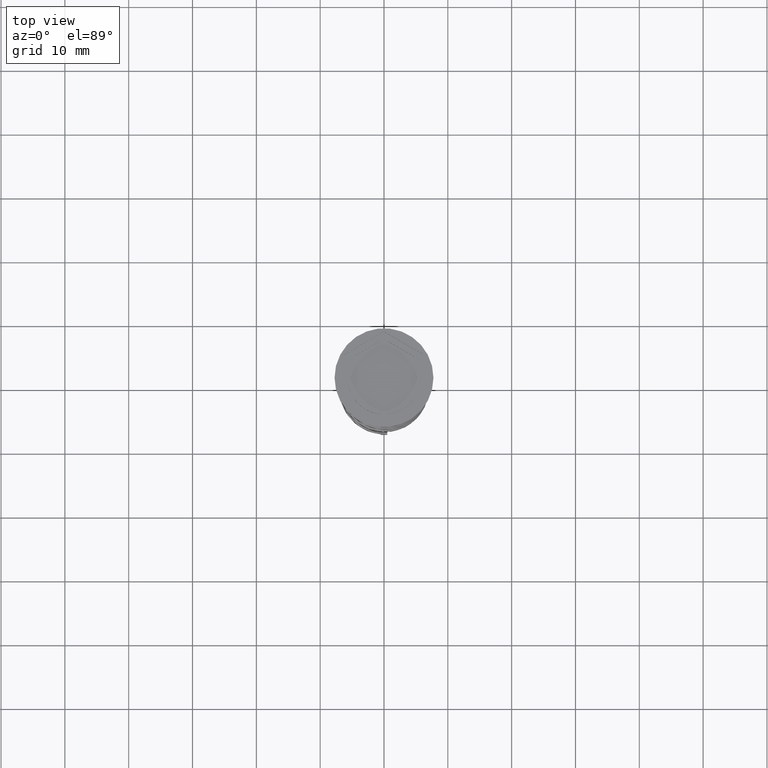
[diagram: clean part render]
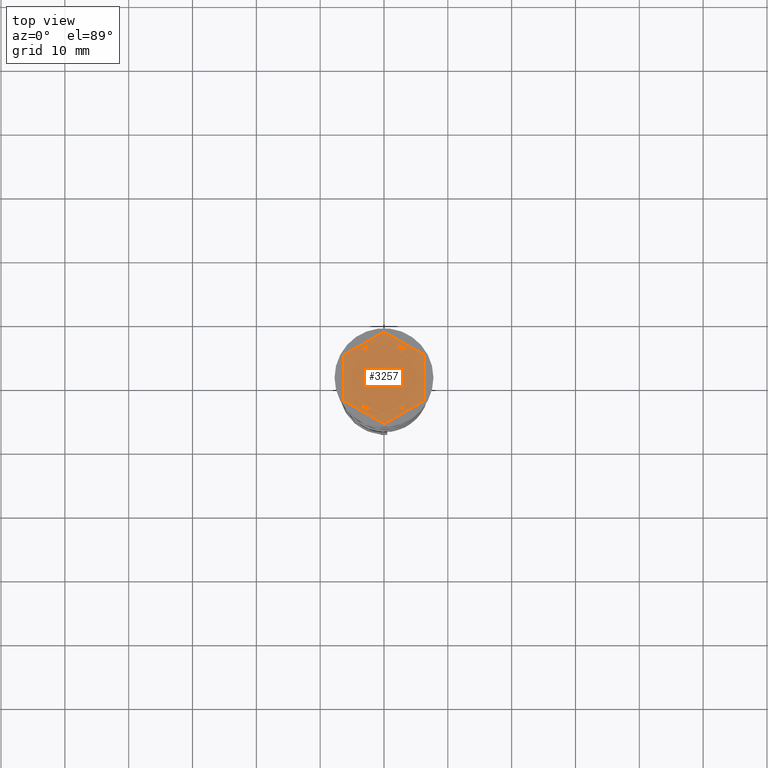
[diagram: same view with one face highlighted and labeled with its STEP entity id]
A machine part, top view. The second image highlights one B-rep face of the part: STEP entity #3257.
In plain terms, the highlighted planar face has unit normal (0, 0, 1).
Its self-contained STEP definition (entity closure, byte-faithful):
#24 = CARTESIAN_POINT ( 'NONE',  ( 0.000000000000000000, 0.000000000000000000, -1.000000000000000000 ) ) ;
#73 = CIRCLE ( 'NONE', #1447, 5.750000000000000000 ) ;
#74 = CARTESIAN_POINT ( 'NONE',  ( 5.249999999999997335, -2.345207879911720639, -1.000000000000000888 ) ) ;
#91 = CARTESIAN_POINT ( 'NONE',  ( 4.656009601158990208, -3.374029429912445810, -1.000000000000000888 ) ) ;
#105 = VERTEX_POINT ( 'NONE', #74 ) ;
#171 = ORIENTED_EDGE ( 'NONE', *, *, #2113, .F. ) ;
#189 = CARTESIAN_POINT ( 'NONE',  ( -0.5939903988410105695, 5.719237309824159787, -1.000000000000000888 ) ) ;
#226 = FACE_BOUND ( 'NONE', #2505, .T. ) ;
#287 = EDGE_CURVE ( 'NONE', #1106, #1425, #582, .T. ) ;
#355 = ORIENTED_EDGE ( 'NONE', *, *, #1433, .F. ) ;
#357 = ORIENTED_EDGE ( 'NONE', *, *, #2494, .F. ) ;
#358 = VECTOR ( 'NONE', #2895, 1000.000000000000000 ) ;
#360 = DIRECTION ( 'NONE',  ( 0.000000000000000000, 0.000000000000000000, 1.000000000000000000 ) ) ;
#361 = VECTOR ( 'NONE', #2993, 1000.000000000000114 ) ;
#421 = CARTESIAN_POINT ( 'NONE',  ( -4.656009601158991096, -3.374029429912444034, -1.000000000000000888 ) ) ;
#430 = CARTESIAN_POINT ( 'NONE',  ( 0.000000000000000000, 0.000000000000000000, -1.000000000000000000 ) ) ;
#461 = CARTESIAN_POINT ( 'NONE',  ( 0.000000000000000000, 0.000000000000000000, -1.000000000000000000 ) ) ;
#477 = CARTESIAN_POINT ( 'NONE',  ( 6.249999999999998224, -3.608439182435161374, -1.000000000000000000 ) ) ;
#499 = DIRECTION ( 'NONE',  ( 1.000000000000000000, 0.000000000000000000, 0.000000000000000000 ) ) ;
#501 = CARTESIAN_POINT ( 'NONE',  ( -6.249999999999999112, -3.608439182435161374, -1.000000000000000000 ) ) ;
#502 = CARTESIAN_POINT ( 'NONE',  ( -1.734723475976807094E-15, -6.062177826491069510, -1.000000000000000888 ) ) ;
#515 = FACE_BOUND ( 'NONE', #1985, .T. ) ;
#518 = DIRECTION ( 'NONE',  ( 0.8660254037844387076, -0.4999999999999998335, 0.000000000000000000 ) ) ;
#538 = VECTOR ( 'NONE', #2588, 1000.000000000000000 ) ;
#556 = CARTESIAN_POINT ( 'NONE',  ( 0.000000000000000000, 0.000000000000000000, -1.000000000000000000 ) ) ;
#559 = CARTESIAN_POINT ( 'NONE',  ( 8.729740977282959667E-16, -7.216878364870321860, -1.000000000000000000 ) ) ;
#569 = CARTESIAN_POINT ( 'NONE',  ( 4.656009601158988431, 3.374029429912448919, -1.000000000000000888 ) ) ;
#582 = CIRCLE ( 'NONE', #1613, 5.750000000000000000 ) ;
#638 = CARTESIAN_POINT ( 'NONE',  ( 0.000000000000000000, 0.000000000000000000, -1.000000000000000000 ) ) ;
#653 = CARTESIAN_POINT ( 'NONE',  ( 8.729740977282959667E-16, -7.216878364870321860, -1.000000000000000000 ) ) ;
#660 = VERTEX_POINT ( 'NONE', #2555 ) ;
#663 = CARTESIAN_POINT ( 'NONE',  ( 8.673617379884035472E-16, 6.062177826491070398, -1.000000000000000888 ) ) ;
#665 = LINE ( 'NONE', #917, #2512 ) ;
#700 = CARTESIAN_POINT ( 'NONE',  ( -0.5939903988410105695, -5.719237309824160675, -1.000000000000000888 ) ) ;
#734 = CARTESIAN_POINT ( 'NONE',  ( 0.000000000000000000, 7.216878364870320084, -1.000000000000000000 ) ) ;
#758 = EDGE_CURVE ( 'NONE', #2315, #1152, #2137, .T. ) ;
#766 = ORIENTED_EDGE ( 'NONE', *, *, #1164, .F. ) ;
#776 = CARTESIAN_POINT ( 'NONE',  ( 6.250000000000000000, 3.608439182435161374, -1.000000000000000000 ) ) ;
#797 = FACE_BOUND ( 'NONE', #1560, .T. ) ;
#801 = CARTESIAN_POINT ( 'NONE',  ( 5.249999999999997335, 3.031088913245537864, -1.000000000000000888 ) ) ;
#846 = EDGE_CURVE ( 'NONE', #1958, #2600, #1144, .T. ) ;
#857 = EDGE_CURVE ( 'NONE', #660, #3265, #2964, .T. ) ;
#867 = CARTESIAN_POINT ( 'NONE',  ( 6.249999999999998224, -3.608439182435161374, -1.000000000000000000 ) ) ;
#891 = DIRECTION ( 'NONE',  ( 1.000000000000000000, 0.000000000000000000, 0.000000000000000000 ) ) ;
#910 = ORIENTED_EDGE ( 'NONE', *, *, #3275, .F. ) ;
#917 = CARTESIAN_POINT ( 'NONE',  ( 5.249999999999996447, -3.031088913245536975, -1.000000000000000888 ) ) ;
#932 = DIRECTION ( 'NONE',  ( 0.8660254037844387076, 0.4999999999999999445, -0.000000000000000000 ) ) ;
#1016 = ORIENTED_EDGE ( 'NONE', *, *, #3019, .T. ) ;
#1060 = CARTESIAN_POINT ( 'NONE',  ( 0.000000000000000000, 0.000000000000000000, -1.000000000000000000 ) ) ;
#1101 = EDGE_CURVE ( 'NONE', #3182, #3462, #1942, .T. ) ;
#1106 = VERTEX_POINT ( 'NONE', #3028 ) ;
#1133 = ORIENTED_EDGE ( 'NONE', *, *, #2047, .T. ) ;
#1142 = DIRECTION ( 'NONE',  ( 1.000000000000000000, 0.000000000000000000, 0.000000000000000000 ) ) ;
#1144 = LINE ( 'NONE', #801, #3017 ) ;
#1152 = VERTEX_POINT ( 'NONE', #1912 ) ;
#1164 = EDGE_CURVE ( 'NONE', #1152, #1190, #73, .T. ) ;
#1190 = VERTEX_POINT ( 'NONE', #3314 ) ;
#1254 = ORIENTED_EDGE ( 'NONE', *, *, #3362, .F. ) ;
#1257 = CARTESIAN_POINT ( 'NONE',  ( 0.000000000000000000, 0.000000000000000000, -1.000000000000000000 ) ) ;
#1260 = VERTEX_POINT ( 'NONE', #867 ) ;
#1280 = VECTOR ( 'NONE', #932, 1000.000000000000000 ) ;
#1284 = AXIS2_PLACEMENT_3D ( 'NONE', #1060, #2943, #1606 ) ;
#1285 = AXIS2_PLACEMENT_3D ( 'NONE', #1257, #360, #2932 ) ;
#1296 = DIRECTION ( 'NONE',  ( -0.8660254037844385966, -0.5000000000000001110, 0.000000000000000000 ) ) ;
#1311 = DIRECTION ( 'NONE',  ( 0.8660254037844385966, -0.4999999999999998890, 0.000000000000000000 ) ) ;
#1325 = PLANE ( 'NONE',  #1284 ) ;
#1329 = DIRECTION ( 'NONE',  ( 0.000000000000000000, 0.000000000000000000, 1.000000000000000000 ) ) ;
#1332 = LINE ( 'NONE', #734, #1847 ) ;
#1344 = VECTOR ( 'NONE', #1934, 1000.000000000000000 ) ;
#1404 = AXIS2_PLACEMENT_3D ( 'NONE', #461, #1329, #499 ) ;
#1425 = VERTEX_POINT ( 'NONE', #91 ) ;
#1426 = DIRECTION ( 'NONE',  ( 0.000000000000000000, 0.000000000000000000, 1.000000000000000000 ) ) ;
#1433 = EDGE_CURVE ( 'NONE', #1190, #2315, #1626, .T. ) ;
#1447 = AXIS2_PLACEMENT_3D ( 'NONE', #24, #1426, #2222 ) ;
#1450 = EDGE_CURVE ( 'NONE', #3265, #2021, #3180, .T. ) ;
#1465 = ORIENTED_EDGE ( 'NONE', *, *, #2980, .F. ) ;
#1474 = EDGE_LOOP ( 'NONE', ( #2238, #1465 ) ) ;
#1483 = ORIENTED_EDGE ( 'NONE', *, *, #857, .T. ) ;
#1504 = VECTOR ( 'NONE', #2675, 1000.000000000000000 ) ;
#1525 = LINE ( 'NONE', #477, #538 ) ;
#1548 = EDGE_CURVE ( 'NONE', #105, #1787, #1794, .T. ) ;
#1560 = EDGE_LOOP ( 'NONE', ( #1254, #1825 ) ) ;
#1581 = EDGE_LOOP ( 'NONE', ( #3493, #910 ) ) ;
#1602 = ORIENTED_EDGE ( 'NONE', *, *, #1101, .F. ) ;
#1606 = DIRECTION ( 'NONE',  ( 1.000000000000000000, 0.000000000000000000, -0.000000000000000000 ) ) ;
#1609 = CARTESIAN_POINT ( 'NONE',  ( -6.249999999999999112, 3.608439182435158710, -1.000000000000000000 ) ) ;
#1611 = EDGE_LOOP ( 'NONE', ( #2367, #1133, #1483, #2698, #1816, #1016 ) ) ;
#1613 = AXIS2_PLACEMENT_3D ( 'NONE', #3280, #1689, #1653 ) ;
#1626 = CIRCLE ( 'NONE', #1285, 5.750000000000000000 ) ;
#1653 = DIRECTION ( 'NONE',  ( 1.000000000000000000, 0.000000000000000000, 0.000000000000000000 ) ) ;
#1677 = AXIS2_PLACEMENT_3D ( 'NONE', #638, #1961, #891 ) ;
#1689 = DIRECTION ( 'NONE',  ( 0.000000000000000000, 0.000000000000000000, 1.000000000000000000 ) ) ;
#1787 = VERTEX_POINT ( 'NONE', #1910 ) ;
#1794 = CIRCLE ( 'NONE', #2226, 5.750000000000000000 ) ;
#1795 = CARTESIAN_POINT ( 'NONE',  ( 0.5939903988410126789, 5.719237309824160675, -1.000000000000000888 ) ) ;
#1816 = ORIENTED_EDGE ( 'NONE', *, *, #2267, .T. ) ;
#1824 = DIRECTION ( 'NONE',  ( -0.8660254037844387076, -0.4999999999999997224, 0.000000000000000000 ) ) ;
#1825 = ORIENTED_EDGE ( 'NONE', *, *, #846, .F. ) ;
#1847 = VECTOR ( 'NONE', #1296, 1000.000000000000114 ) ;
#1851 = DIRECTION ( 'NONE',  ( 0.000000000000000000, 0.000000000000000000, 1.000000000000000000 ) ) ;
#1864 = FACE_OUTER_BOUND ( 'NONE', #1611, .T. ) ;
#1910 = CARTESIAN_POINT ( 'NONE',  ( 5.249999999999997335, 2.345207879911718862, -1.000000000000000888 ) ) ;
#1912 = CARTESIAN_POINT ( 'NONE',  ( -5.249999999999999112, 2.345207879911715310, -1.000000000000000888 ) ) ;
#1934 = DIRECTION ( 'NONE',  ( 0.8660254037844385966, 0.5000000000000001110, 0.000000000000000000 ) ) ;
#1942 = LINE ( 'NONE', #3267, #361 ) ;
#1950 = VECTOR ( 'NONE', #1824, 1000.000000000000114 ) ;
#1954 = CARTESIAN_POINT ( 'NONE',  ( -5.249999999999999112, -2.345207879911715310, -1.000000000000000888 ) ) ;
#1958 = VERTEX_POINT ( 'NONE', #1795 ) ;
#1961 = DIRECTION ( 'NONE',  ( 0.000000000000000000, 0.000000000000000000, 1.000000000000000000 ) ) ;
#1967 = DIRECTION ( 'NONE',  ( -1.430775808321103440E-16, -1.000000000000000000, 0.000000000000000000 ) ) ;
#1981 = CARTESIAN_POINT ( 'NONE',  ( 0.000000000000000000, 7.216878364870320084, -1.000000000000000000 ) ) ;
#1985 = EDGE_LOOP ( 'NONE', ( #2713, #171 ) ) ;
#2021 = VERTEX_POINT ( 'NONE', #653 ) ;
#2047 = EDGE_CURVE ( 'NONE', #2975, #660, #1332, .T. ) ;
#2054 = EDGE_LOOP ( 'NONE', ( #357, #1602 ) ) ;
#2074 = CIRCLE ( 'NONE', #1404, 5.750000000000000000 ) ;
#2094 = DIRECTION ( 'NONE',  ( -0.8660254037844388186, 0.4999999999999997224, 0.000000000000000000 ) ) ;
#2113 = EDGE_CURVE ( 'NONE', #1425, #1106, #2933, .T. ) ;
#2129 = CIRCLE ( 'NONE', #2234, 5.750000000000000000 ) ;
#2131 = FACE_BOUND ( 'NONE', #1581, .T. ) ;
#2137 = LINE ( 'NONE', #3198, #358 ) ;
#2222 = DIRECTION ( 'NONE',  ( 1.000000000000000000, 0.000000000000000000, 0.000000000000000000 ) ) ;
#2226 = AXIS2_PLACEMENT_3D ( 'NONE', #430, #1851, #2929 ) ;
#2234 = AXIS2_PLACEMENT_3D ( 'NONE', #556, #3515, #1142 ) ;
#2238 = ORIENTED_EDGE ( 'NONE', *, *, #2608, .F. ) ;
#2267 = EDGE_CURVE ( 'NONE', #2021, #1260, #3181, .T. ) ;
#2315 = VERTEX_POINT ( 'NONE', #1954 ) ;
#2323 = VERTEX_POINT ( 'NONE', #3052 ) ;
#2367 = ORIENTED_EDGE ( 'NONE', *, *, #2998, .T. ) ;
#2390 = CARTESIAN_POINT ( 'NONE',  ( -6.249999999999999112, -3.608439182435161374, -1.000000000000000000 ) ) ;
#2493 = LINE ( 'NONE', #663, #1280 ) ;
#2494 = EDGE_CURVE ( 'NONE', #3462, #3182, #2074, .T. ) ;
#2505 = EDGE_LOOP ( 'NONE', ( #766, #3407, #355 ) ) ;
#2512 = VECTOR ( 'NONE', #1967, 1000.000000000000000 ) ;
#2555 = CARTESIAN_POINT ( 'NONE',  ( -6.249999999999999112, 3.608439182435158710, -1.000000000000000000 ) ) ;
#2588 = DIRECTION ( 'NONE',  ( 2.403703357979454647E-16, 1.000000000000000000, 0.000000000000000000 ) ) ;
#2600 = VERTEX_POINT ( 'NONE', #569 ) ;
#2608 = EDGE_CURVE ( 'NONE', #3069, #2323, #2129, .T. ) ;
#2675 = DIRECTION ( 'NONE',  ( 0.000000000000000000, -1.000000000000000000, 0.000000000000000000 ) ) ;
#2682 = VECTOR ( 'NONE', #2094, 1000.000000000000000 ) ;
#2698 = ORIENTED_EDGE ( 'NONE', *, *, #1450, .T. ) ;
#2713 = ORIENTED_EDGE ( 'NONE', *, *, #287, .F. ) ;
#2797 = VECTOR ( 'NONE', #1311, 1000.000000000000227 ) ;
#2852 = LINE ( 'NONE', #776, #2682 ) ;
#2895 = DIRECTION ( 'NONE',  ( 0.000000000000000000, 1.000000000000000000, 0.000000000000000000 ) ) ;
#2929 = DIRECTION ( 'NONE',  ( 1.000000000000000000, 0.000000000000000000, 0.000000000000000000 ) ) ;
#2932 = DIRECTION ( 'NONE',  ( 1.000000000000000000, 0.000000000000000000, 0.000000000000000000 ) ) ;
#2933 = LINE ( 'NONE', #502, #1950 ) ;
#2943 = DIRECTION ( 'NONE',  ( 0.000000000000000000, 0.000000000000000000, 1.000000000000000000 ) ) ;
#2964 = LINE ( 'NONE', #1609, #1504 ) ;
#2975 = VERTEX_POINT ( 'NONE', #1981 ) ;
#2980 = EDGE_CURVE ( 'NONE', #2323, #3069, #2493, .T. ) ;
#2993 = DIRECTION ( 'NONE',  ( -0.8660254037844384856, 0.5000000000000002220, 0.000000000000000000 ) ) ;
#2998 = EDGE_CURVE ( 'NONE', #3208, #2975, #2852, .T. ) ;
#3017 = VECTOR ( 'NONE', #518, 1000.000000000000114 ) ;
#3019 = EDGE_CURVE ( 'NONE', #1260, #3208, #1525, .T. ) ;
#3028 = CARTESIAN_POINT ( 'NONE',  ( 0.5939903988410074609, -5.719237309824160675, -1.000000000000000888 ) ) ;
#3052 = CARTESIAN_POINT ( 'NONE',  ( -4.656009601158989319, 3.374029429912446698, -1.000000000000000888 ) ) ;
#3069 = VERTEX_POINT ( 'NONE', #189 ) ;
#3180 = LINE ( 'NONE', #501, #2797 ) ;
#3181 = LINE ( 'NONE', #559, #1344 ) ;
#3182 = VERTEX_POINT ( 'NONE', #700 ) ;
#3196 = CIRCLE ( 'NONE', #1677, 5.750000000000000000 ) ;
#3198 = CARTESIAN_POINT ( 'NONE',  ( -5.249999999999999112, 3.031088913245535199, -1.000000000000000888 ) ) ;
#3208 = VERTEX_POINT ( 'NONE', #3409 ) ;
#3212 = FACE_BOUND ( 'NONE', #1474, .T. ) ;
#3257 = ADVANCED_FACE ( 'NONE', ( #797, #2131, #515, #3475, #226, #3212, #1864 ), #1325, .T. ) ;
#3265 = VERTEX_POINT ( 'NONE', #2390 ) ;
#3267 = CARTESIAN_POINT ( 'NONE',  ( -5.249999999999999112, -3.031088913245534311, -1.000000000000000888 ) ) ;
#3275 = EDGE_CURVE ( 'NONE', #1787, #105, #665, .T. ) ;
#3280 = CARTESIAN_POINT ( 'NONE',  ( 0.000000000000000000, 0.000000000000000000, -1.000000000000000000 ) ) ;
#3314 = CARTESIAN_POINT ( 'NONE',  ( -5.750000000000000000, 0.000000000000000000, -1.000000000000000000 ) ) ;
#3362 = EDGE_CURVE ( 'NONE', #2600, #1958, #3196, .T. ) ;
#3407 = ORIENTED_EDGE ( 'NONE', *, *, #758, .F. ) ;
#3409 = CARTESIAN_POINT ( 'NONE',  ( 6.250000000000000000, 3.608439182435161374, -1.000000000000000000 ) ) ;
#3462 = VERTEX_POINT ( 'NONE', #421 ) ;
#3475 = FACE_BOUND ( 'NONE', #2054, .T. ) ;
#3493 = ORIENTED_EDGE ( 'NONE', *, *, #1548, .F. ) ;
#3515 = DIRECTION ( 'NONE',  ( 0.000000000000000000, 0.000000000000000000, 1.000000000000000000 ) ) ;